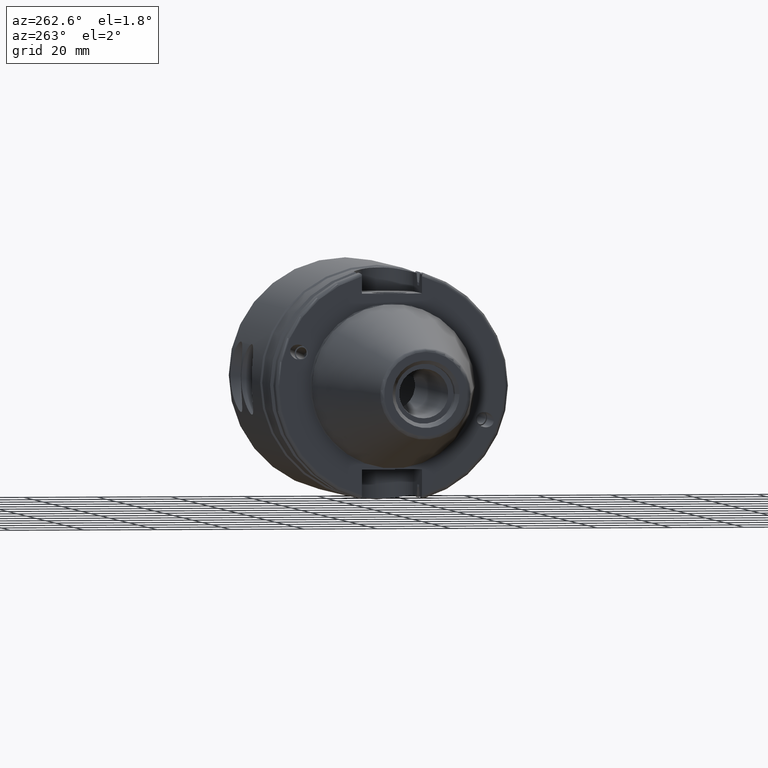
[diagram: clean part render]
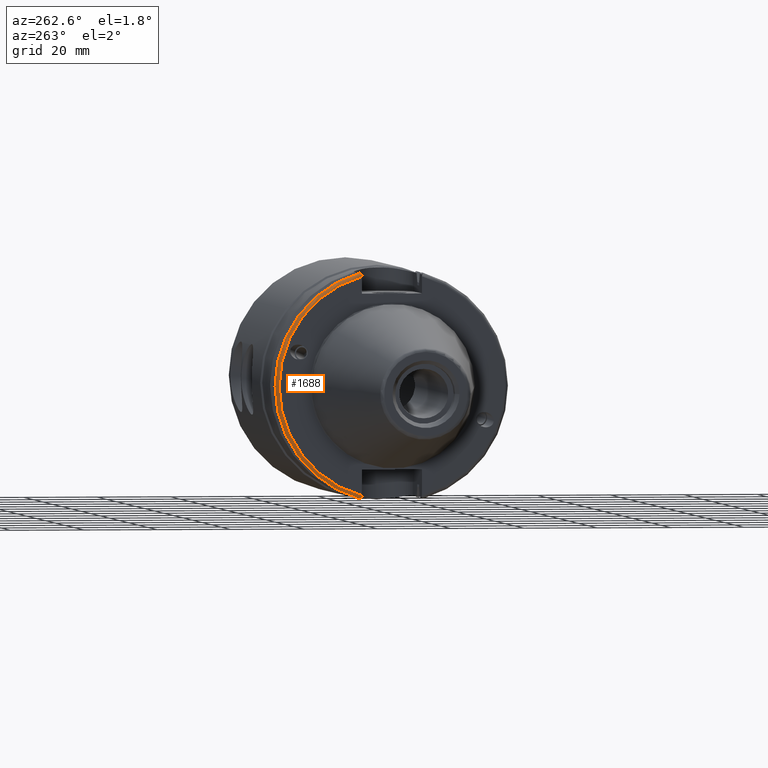
[diagram: same view with one face highlighted and labeled with its STEP entity id]
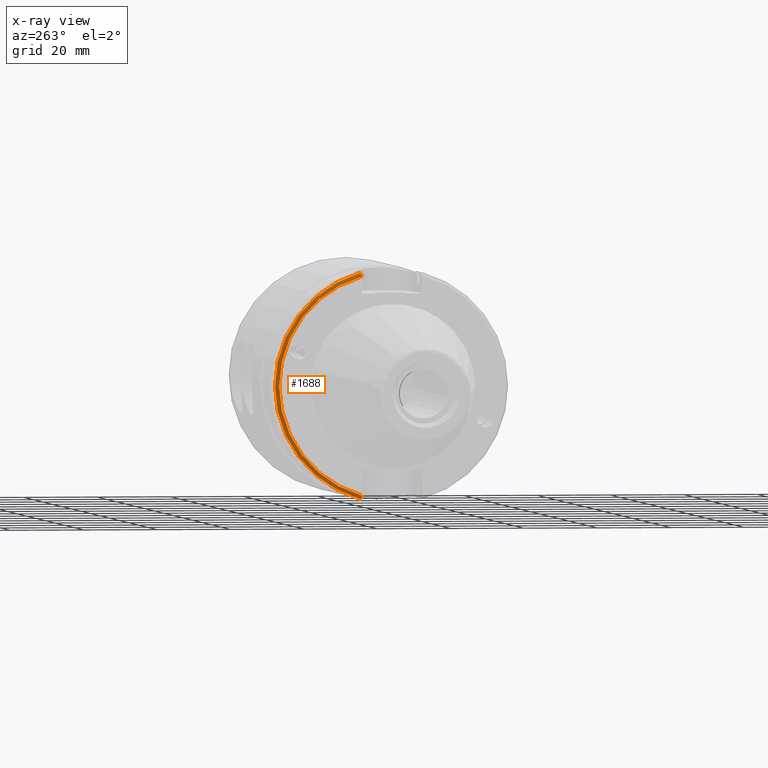
[diagram: x-ray of the same camera — body ghosted, the highlighted face saturated]
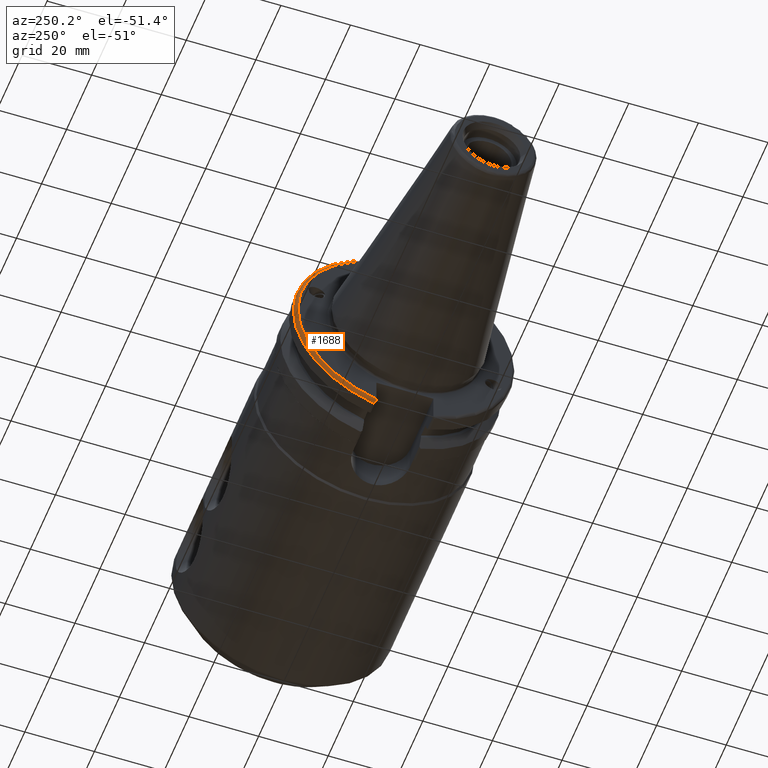
[diagram: same view with one face highlighted and labeled with its STEP entity id]
A machine part, auxiliary view. The second image highlights one B-rep face of the part: STEP entity #1688.
The next image is the same camera in x-ray: the body ghosted, the highlighted face saturated — about 0% of this face is hidden behind the body in this view.
A second angle (auxiliary view) of the same face is appended — the face is thin or edge-on in the first view.
In plain terms, the highlighted toroidal blend (fillet) surface has major radius 30.75 mm and minor (blend) radius 1 mm.
Its self-contained STEP definition (entity closure, byte-faithful):
#111=TOROIDAL_SURFACE('',#1888,30.75,1.);
#207=FACE_OUTER_BOUND('',#316,.T.);
#316=EDGE_LOOP('',(#1438,#1439,#1440,#1441,#1442,#1443));
#396=B_SPLINE_CURVE_WITH_KNOTS('',3,(#3379,#3380,#3381,#3382,#3383,#3384,
#3385,#3386),.UNSPECIFIED.,.F.,.F.,(4,2,2,4),(-0.104180282751876,-0.072978474246144,
-0.0343524753874979,0.),.UNSPECIFIED.);
#397=B_SPLINE_CURVE_WITH_KNOTS('',3,(#3390,#3391,#3392,#3393,#3394,#3395,
#3396,#3397),.UNSPECIFIED.,.F.,.F.,(4,2,2,4),(0.,0.0343524753874975,0.0729784742461445,
0.104180282751877),.UNSPECIFIED.);
#398=B_SPLINE_CURVE_WITH_KNOTS('',3,(#3398,#3399,#3400,#3401,#3402,#3403),
 .UNSPECIFIED.,.F.,.F.,(4,2,4),(0.0977210450333169,0.111963554372601,0.150804064902975),
 .UNSPECIFIED.);
#399=B_SPLINE_CURVE_WITH_KNOTS('',3,(#3404,#3405,#3406,#3407,#3408,#3409),
 .UNSPECIFIED.,.F.,.F.,(4,2,4),(0.452741154494498,0.491581665024872,0.505824174364157),
 .UNSPECIFIED.);
#460=CIRCLE('',#1873,30.75);
#466=CIRCLE('',#1889,31.75);
#796=VERTEX_POINT('',#3259);
#797=VERTEX_POINT('',#3261);
#812=VERTEX_POINT('',#3377);
#813=VERTEX_POINT('',#3378);
#814=VERTEX_POINT('',#3387);
#815=VERTEX_POINT('',#3389);
#1015=EDGE_CURVE('',#797,#796,#460,.T.);
#1042=EDGE_CURVE('',#812,#813,#396,.T.);
#1043=EDGE_CURVE('',#813,#814,#466,.T.);
#1044=EDGE_CURVE('',#814,#815,#397,.T.);
#1045=EDGE_CURVE('',#815,#797,#398,.T.);
#1046=EDGE_CURVE('',#796,#812,#399,.T.);
#1438=ORIENTED_EDGE('',*,*,#1042,.T.);
#1439=ORIENTED_EDGE('',*,*,#1043,.T.);
#1440=ORIENTED_EDGE('',*,*,#1044,.T.);
#1441=ORIENTED_EDGE('',*,*,#1045,.T.);
#1442=ORIENTED_EDGE('',*,*,#1015,.T.);
#1443=ORIENTED_EDGE('',*,*,#1046,.T.);
#1688=ADVANCED_FACE('',(#207),#111,.T.);
#1873=AXIS2_PLACEMENT_3D('',#3262,#2256,#2257);
#1888=AXIS2_PLACEMENT_3D('',#3376,#2297,#2298);
#1889=AXIS2_PLACEMENT_3D('',#3388,#2299,#2300);
#2256=DIRECTION('center_axis',(1.,0.,0.));
#2257=DIRECTION('ref_axis',(0.,1.,1.60812264967664E-16));
#2297=DIRECTION('center_axis',(1.,0.,0.));
#2298=DIRECTION('ref_axis',(0.,0.,-1.));
#2299=DIRECTION('center_axis',(-1.,0.,0.));
#2300=DIRECTION('ref_axis',(0.,1.,1.60812264967664E-16));
#3259=CARTESIAN_POINT('',(3.175,8.19,29.6392712461019));
#3261=CARTESIAN_POINT('',(3.175,8.18999999999999,-29.6392712461019));
#3262=CARTESIAN_POINT('Origin',(3.175,0.,0.));
#3376=CARTESIAN_POINT('Origin',(4.175,0.,0.));
#3377=CARTESIAN_POINT('',(3.31912772509028,8.19,30.1755016258903));
#3378=CARTESIAN_POINT('',(4.175,8.67204822802685,30.5427254764662));
#3379=CARTESIAN_POINT('Ctrl Pts',(3.31912772509028,8.19,30.1755016258903));
#3380=CARTESIAN_POINT('Ctrl Pts',(3.36755369570114,8.2703682833078,30.2367261024977));
#3381=CARTESIAN_POINT('Ctrl Pts',(3.43232973376814,8.34909446036477,30.2966996242308));
#3382=CARTESIAN_POINT('Ctrl Pts',(3.58532758094931,8.48862804755884,30.4029961692546));
#3383=CARTESIAN_POINT('Ctrl Pts',(3.70655857052286,8.56482138642532,30.4610401774263));
#3384=CARTESIAN_POINT('Ctrl Pts',(3.92668295662254,8.6471881193939,30.5237870709558));
#3385=CARTESIAN_POINT('Ctrl Pts',(4.06049174870834,8.67204822802686,30.5427254764662));
#3386=CARTESIAN_POINT('Ctrl Pts',(4.175,8.67204822802686,30.5427254764662));
#3387=CARTESIAN_POINT('',(4.175,8.67204822802685,-30.5427254764662));
#3388=CARTESIAN_POINT('Origin',(4.175,0.,0.));
#3389=CARTESIAN_POINT('',(3.31912772509028,8.19,-30.1755016258903));
#3390=CARTESIAN_POINT('Ctrl Pts',(4.175,8.67204822802685,-30.5427254764662));
#3391=CARTESIAN_POINT('Ctrl Pts',(4.06049174870834,8.67204822802685,-30.5427254764662));
#3392=CARTESIAN_POINT('Ctrl Pts',(3.92668295662254,8.6471881193939,-30.5237870709558));
#3393=CARTESIAN_POINT('Ctrl Pts',(3.70655857052286,8.56482138642533,-30.4610401774263));
#3394=CARTESIAN_POINT('Ctrl Pts',(3.58532758094931,8.48862804755884,-30.4029961692546));
#3395=CARTESIAN_POINT('Ctrl Pts',(3.43232973376814,8.34909446036477,-30.2966996242308));
#3396=CARTESIAN_POINT('Ctrl Pts',(3.36755369570113,8.2703682833078,-30.2367261024977));
#3397=CARTESIAN_POINT('Ctrl Pts',(3.31912772509028,8.18999999999999,-30.1755016258903));
#3398=CARTESIAN_POINT('Ctrl Pts',(3.31912772509028,8.19,-30.1755016258903));
#3399=CARTESIAN_POINT('Ctrl Pts',(3.29318362718666,8.19,-30.131014531546));
#3400=CARTESIAN_POINT('Ctrl Pts',(3.27103565282437,8.19,-30.0852355256475));
#3401=CARTESIAN_POINT('Ctrl Pts',(3.20451443291695,8.19,-29.9212724384851));
#3402=CARTESIAN_POINT('Ctrl Pts',(3.175,8.19,-29.7687396145364));
#3403=CARTESIAN_POINT('Ctrl Pts',(3.175,8.19,-29.6392712461019));
#3404=CARTESIAN_POINT('Ctrl Pts',(3.175,8.19,29.6392712461018));
#3405=CARTESIAN_POINT('Ctrl Pts',(3.175,8.19,29.7687396145364));
#3406=CARTESIAN_POINT('Ctrl Pts',(3.20451443291695,8.19,29.9212724384851));
#3407=CARTESIAN_POINT('Ctrl Pts',(3.27103565282437,8.19,30.0852355256475));
#3408=CARTESIAN_POINT('Ctrl Pts',(3.29318362718666,8.19,30.131014531546));
#3409=CARTESIAN_POINT('Ctrl Pts',(3.31912772509028,8.19,30.1755016258903));